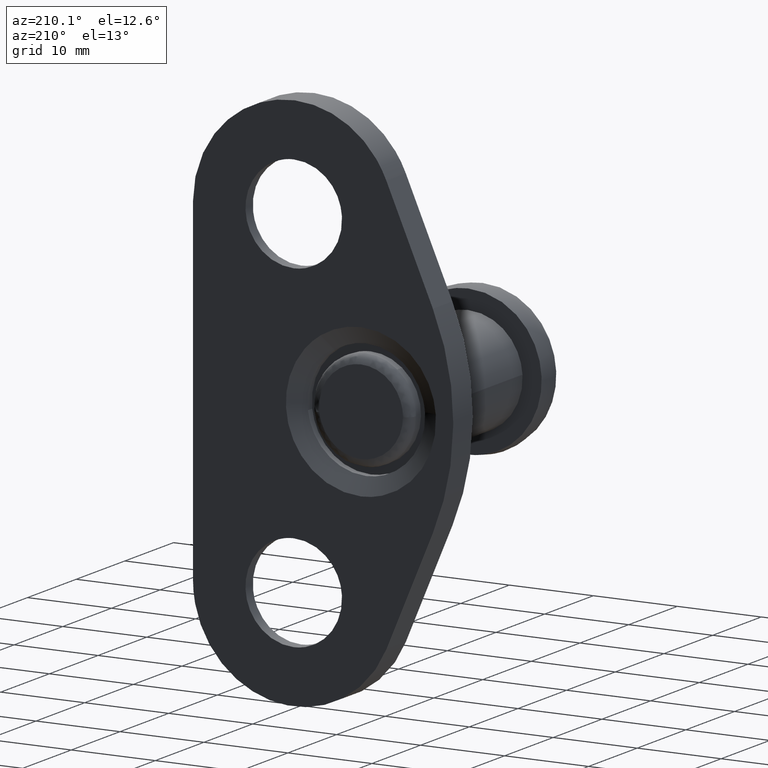
[diagram: clean part render]
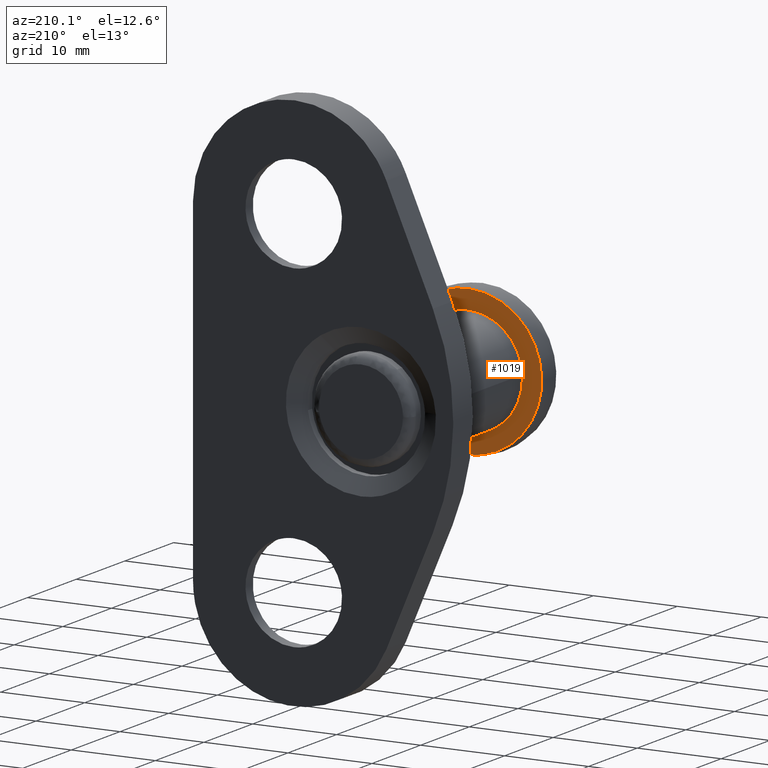
[diagram: same view with one face highlighted and labeled with its STEP entity id]
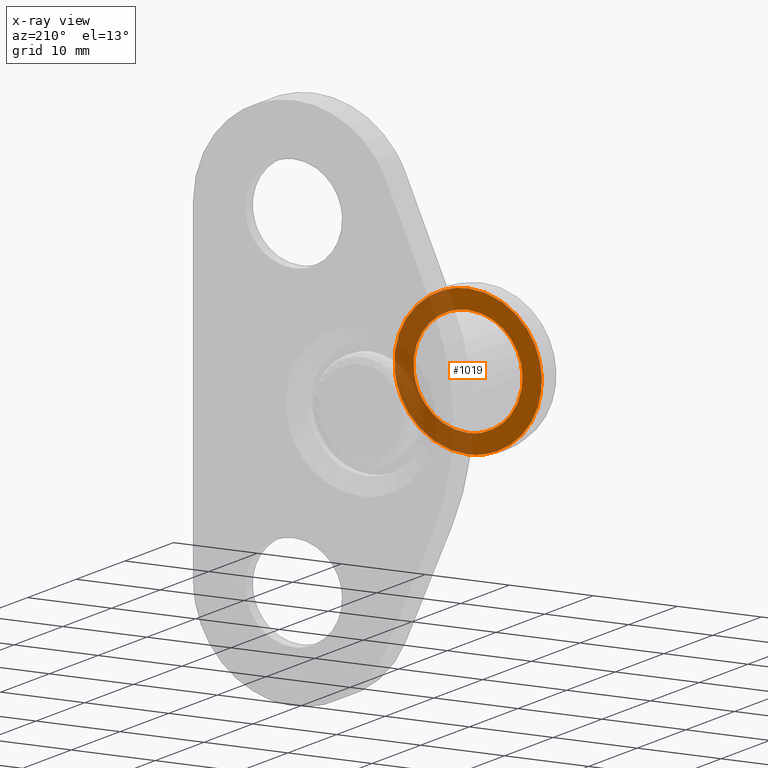
[diagram: x-ray of the same camera — body ghosted, the highlighted face saturated]
A machine part, auxiliary view. The second image highlights one B-rep face of the part: STEP entity #1019.
The next image is the same camera in x-ray: the body ghosted, the highlighted face saturated — about 47% of this face is hidden behind the body in this view.
In plain terms, the highlighted face is a freeform B-spline surface patch.
Its self-contained STEP definition (entity closure, byte-faithful):
#66=CARTESIAN_POINT('',(6.454561921356978,3.000000000000001,-0.767222525325906));
#67=VERTEX_POINT('',#66);
#68=CARTESIAN_POINT('',(0.0,3.0,6.499999999999920));
#69=VERTEX_POINT('',#68);
#70=CARTESIAN_POINT('',(6.454561921356978,3.000000000000001,-0.767222525325906));
#71=CARTESIAN_POINT('',(6.499999999999919,3.0,-0.384956777794999));
#72=CARTESIAN_POINT('',(6.499999999999920,3.0,-2.965939E-016));
#73=CARTESIAN_POINT('',(6.499999999999920,3.000000000000000,6.499999999999920));
#74=CARTESIAN_POINT('',(0.0,3.0,6.499999999999920));
#82=(BOUNDED_CURVE()B_SPLINE_CURVE(2,(#70,#71,#72,#73,#74),.UNSPECIFIED.,.F.,.U.)B_SPLINE_CURVE_WITH_KNOTS((3,2,3),(0.229562473512660,0.250000000000000,0.500000000000000),.UNSPECIFIED.)CURVE()GEOMETRIC_REPRESENTATION_ITEM()RATIONAL_B_SPLINE_CURVE((0.956026754182037,0.976055948330151,1.0,0.707106781186547,1.0))REPRESENTATION_ITEM(''));
#83=EDGE_CURVE('',#67,#69,#82,.T.);
#124=CARTESIAN_POINT('',(-6.487876485079200,3.000000000000020,0.396810678197942));
#125=VERTEX_POINT('',#124);
#131=CARTESIAN_POINT('',(0.0,3.0,6.499999999999920));
#132=CARTESIAN_POINT('',(-6.114593994342416,3.000000000000000,6.499999999999919));
#133=CARTESIAN_POINT('',(-6.487876485079200,3.000000000000021,0.396810678197942));
#141=(BOUNDED_CURVE()B_SPLINE_CURVE(2,(#131,#132,#133),.UNSPECIFIED.,.F.,.U.)B_SPLINE_CURVE_WITH_KNOTS((3,3),(0.500000000000000,0.739333090664630),.UNSPECIFIED.)CURVE()GEOMETRIC_REPRESENTATION_ITEM()RATIONAL_B_SPLINE_CURVE((1.0,0.719603842826658,0.976072316907567))REPRESENTATION_ITEM(''));
#142=EDGE_CURVE('',#69,#125,#141,.T.);
#165=CARTESIAN_POINT('',(0.0,3.0,-6.499999999999920));
#166=VERTEX_POINT('',#165);
#167=CARTESIAN_POINT('',(0.0,3.0,-6.499999999999920));
#168=CARTESIAN_POINT('',(5.773134418581162,3.000000000000000,-6.499999999999920));
#169=CARTESIAN_POINT('',(6.454561921356978,3.000000000000001,-0.767222525325906));
#177=(BOUNDED_CURVE()B_SPLINE_CURVE(2,(#167,#168,#169),.UNSPECIFIED.,.F.,.U.)B_SPLINE_CURVE_WITH_KNOTS((3,3),(0.0,0.229562473512660),.UNSPECIFIED.)CURVE()GEOMETRIC_REPRESENTATION_ITEM()RATIONAL_B_SPLINE_CURVE((1.0,0.731050832856396,0.956026754182037))REPRESENTATION_ITEM(''));
#178=EDGE_CURVE('',#166,#67,#177,.T.);
#180=CARTESIAN_POINT('',(-6.487876485079200,3.000000000000021,0.396810678197942));
#181=CARTESIAN_POINT('',(-6.499999999999921,3.0,0.198590540281938));
#182=CARTESIAN_POINT('',(-6.499999999999920,3.0,-2.965939E-016));
#183=CARTESIAN_POINT('',(-6.499999999999920,3.000000000000000,-6.499999999999920));
#184=CARTESIAN_POINT('',(0.0,3.0,-6.499999999999920));
#192=(BOUNDED_CURVE()B_SPLINE_CURVE(2,(#180,#181,#182,#183,#184),.UNSPECIFIED.,.F.,.U.)B_SPLINE_CURVE_WITH_KNOTS((3,2,3),(0.739333090664630,0.750000000000000,1.0),.UNSPECIFIED.)CURVE()GEOMETRIC_REPRESENTATION_ITEM()RATIONAL_B_SPLINE_CURVE((0.976072316907567,0.987502938359889,1.0,0.707106781186547,1.0))REPRESENTATION_ITEM(''));
#193=EDGE_CURVE('',#125,#166,#192,.T.);
#852=CARTESIAN_POINT('',(8.711041108606544,3.000000001005166,-1.012586190489180));
#853=VERTEX_POINT('',#852);
#869=CARTESIAN_POINT('',(0.0,3.0,8.769696000000000));
#870=VERTEX_POINT('',#869);
#871=CARTESIAN_POINT('',(8.711041108606544,3.000000001005166,-1.012586190489180));
#872=CARTESIAN_POINT('',(8.769696000000000,3.000000000000001,-0.507991911780721));
#873=CARTESIAN_POINT('',(8.769696000000000,3.0,-2.965939E-016));
#874=CARTESIAN_POINT('',(8.769696000000000,3.0,8.769696000000000));
#875=CARTESIAN_POINT('',(0.0,3.0,8.769696000000000));
#883=(BOUNDED_CURVE()B_SPLINE_CURVE(2,(#871,#872,#873,#874,#875),.UNSPECIFIED.,.F.,.U.)B_SPLINE_CURVE_WITH_KNOTS((3,2,3),(0.229999999998293,0.250000000000000,0.500000000000000),.UNSPECIFIED.)CURVE()GEOMETRIC_REPRESENTATION_ITEM()RATIONAL_B_SPLINE_CURVE((0.956886118187301,0.976568542492924,1.0,0.707106781186548,1.0))REPRESENTATION_ITEM(''));
#884=EDGE_CURVE('',#853,#870,#883,.T.);
#886=CARTESIAN_POINT('',(0.0,2.999994857243486,-8.769697619081097));
#887=VERTEX_POINT('',#886);
#888=CARTESIAN_POINT('',(0.0,3.0,8.769696000000000));
#889=CARTESIAN_POINT('',(-8.769696000000000,3.0,8.769696000000000));
#890=CARTESIAN_POINT('',(-8.769696000000000,2.999997428621743,-0.000000809540549));
#891=CARTESIAN_POINT('',(-8.769696000000000,2.999994857243487,-8.769697619081097));
#892=CARTESIAN_POINT('',(0.0,2.999994857243486,-8.769697619081097));
#900=(BOUNDED_CURVE()B_SPLINE_CURVE(2,(#888,#889,#890,#891,#892),.UNSPECIFIED.,.F.,.U.)B_SPLINE_CURVE_WITH_KNOTS((3,2,3),(0.500000000000000,0.750000000000000,1.0),.UNSPECIFIED.)CURVE()GEOMETRIC_REPRESENTATION_ITEM()RATIONAL_B_SPLINE_CURVE((1.0,0.707106781186548,1.0,0.707106781186548,1.0))REPRESENTATION_ITEM(''));
#901=EDGE_CURVE('',#870,#887,#900,.T.);
#975=CARTESIAN_POINT('',(0.0,2.999994857243486,-8.769697619081097));
#976=CARTESIAN_POINT('',(7.809341508300816,2.999997429124326,-8.769696809704833));
#977=CARTESIAN_POINT('',(8.711041108606544,3.000000001005166,-1.012586190489180));
#985=(BOUNDED_CURVE()B_SPLINE_CURVE(2,(#975,#976,#977),.UNSPECIFIED.,.F.,.U.)B_SPLINE_CURVE_WITH_KNOTS((3,3),(0.0,0.229999999998293),.UNSPECIFIED.)CURVE()GEOMETRIC_REPRESENTATION_ITEM()RATIONAL_B_SPLINE_CURVE((1.0,0.730538238693623,0.956886118187301))REPRESENTATION_ITEM(''));
#986=EDGE_CURVE('',#887,#853,#985,.T.);
#1003=CARTESIAN_POINT('',(-9.645786556685371,3.0,9.645788943909874));
#1004=CARTESIAN_POINT('',(-9.645786556685371,3.0,-9.645789465290175));
#1005=CARTESIAN_POINT('',(9.645739287202924,3.0,9.645788943909874));
#1006=CARTESIAN_POINT('',(9.645739287202924,3.0,-9.645789465290175));
#1007=B_SPLINE_SURFACE_WITH_KNOTS('',1,1,((#1003,#1005),(#1004,#1006)),.UNSPECIFIED.,.F.,.F.,.U.,(2,2),(2,2),(0.0,19.291578409200049),(0.0,19.291525843888291),.UNSPECIFIED.);
#1008=ORIENTED_EDGE('',*,*,#901,.F.);
#1009=ORIENTED_EDGE('',*,*,#884,.F.);
#1010=ORIENTED_EDGE('',*,*,#986,.F.);
#1011=EDGE_LOOP('',(#1008,#1009,#1010));
#1012=FACE_OUTER_BOUND('',#1011,.T.);
#1013=ORIENTED_EDGE('',*,*,#142,.T.);
#1014=ORIENTED_EDGE('',*,*,#193,.T.);
#1015=ORIENTED_EDGE('',*,*,#178,.T.);
#1016=ORIENTED_EDGE('',*,*,#83,.T.);
#1017=EDGE_LOOP('',(#1013,#1014,#1015,#1016));
#1018=FACE_BOUND('',#1017,.T.);
#1019=ADVANCED_FACE('',(#1012,#1018),#1007,.F.);